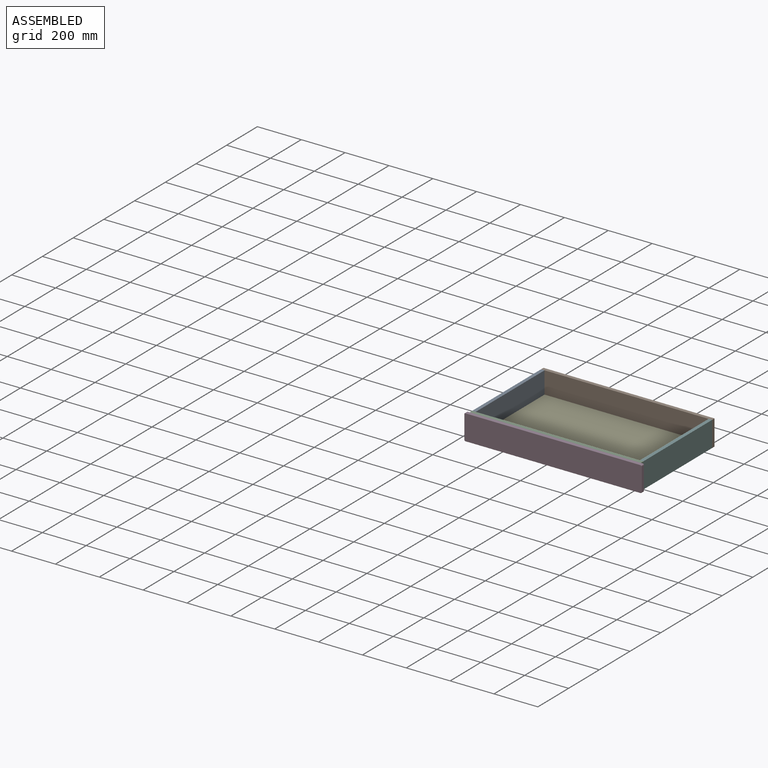
[diagram: assembled view]
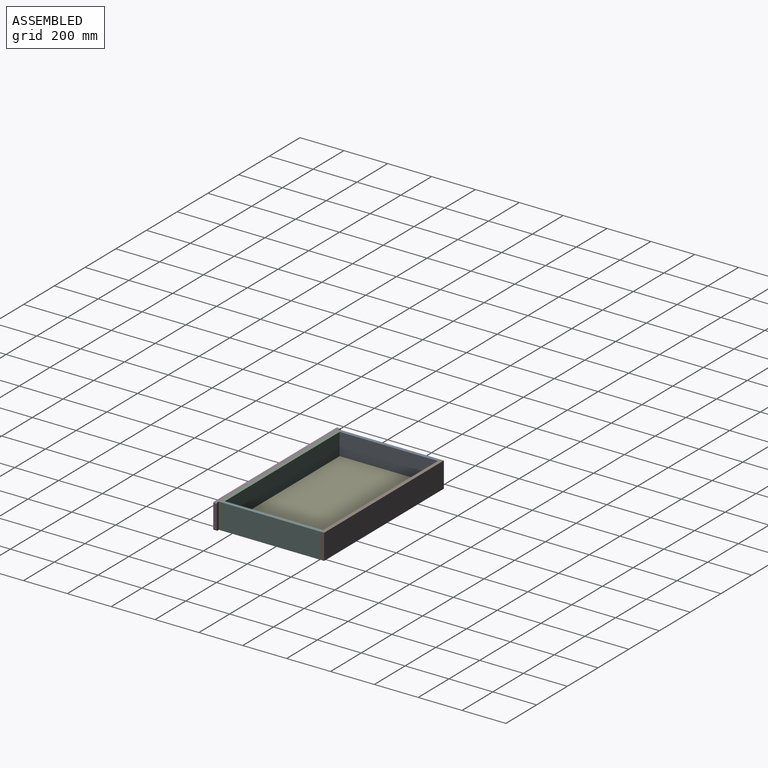
[diagram: assembled view, second angle]
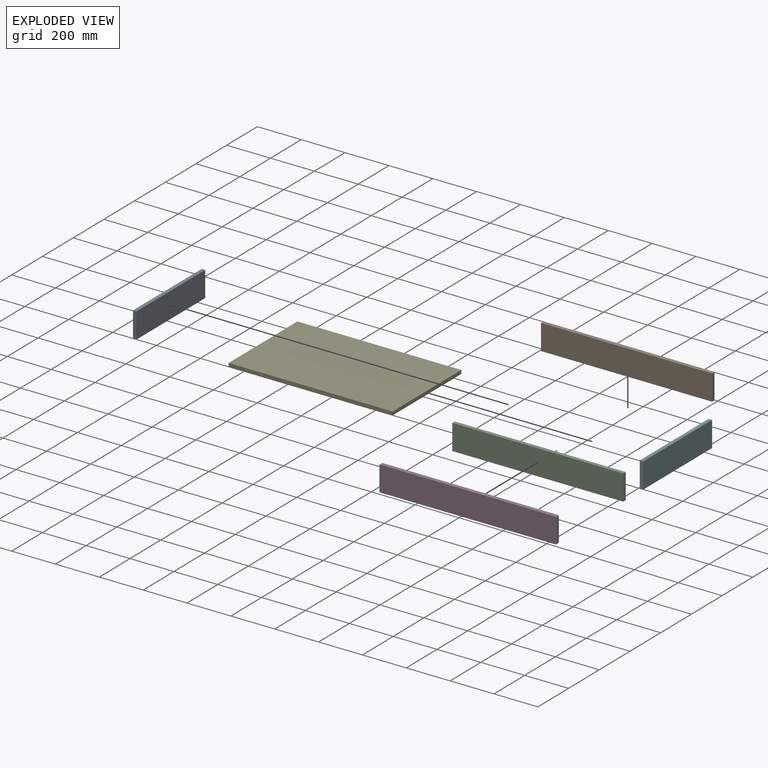
[diagram: exploded view]
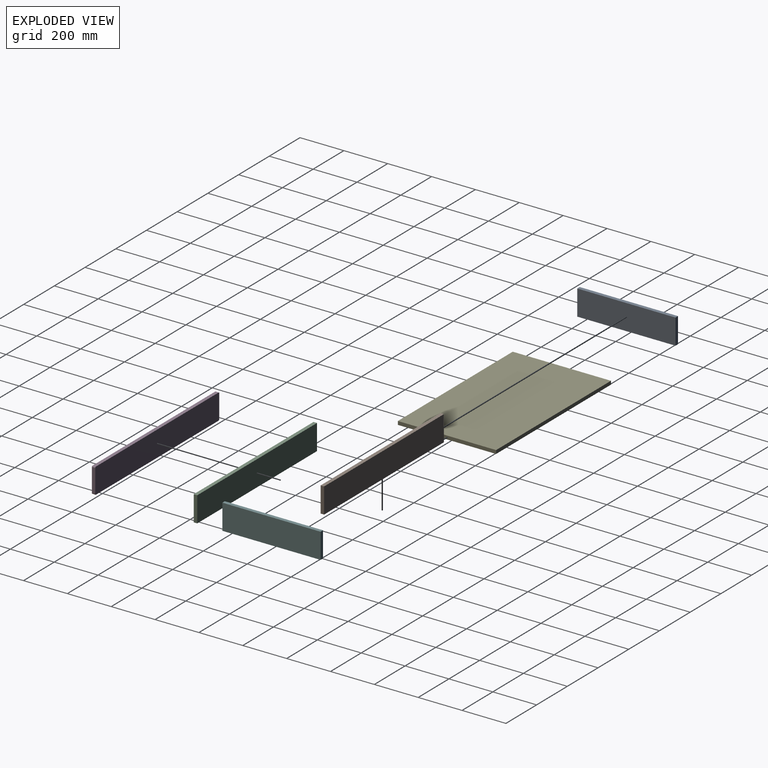
[diagram: exploded view, second angle]
ASSEMBLY  parts=6 mates=12
PART A: 6 faces, bbox 16x448x116 mm
  f0: plane 448x16mm, normal (0,0,1), area 7168mm2, adj f1,f3,f4,f5
  f1: plane 116x16mm, normal (0,-1,0), area 1856mm2, adj f0,f2,f4,f5
  f2: plane 448x16mm, normal (0,0,-1), area 7168mm2, adj f1,f3,f4,f5
  f3: plane 116x16mm, normal (0,1,0), area 1856mm2, adj f0,f2,f4,f5
  f4: plane 448x116mm, normal (1,0,0), area 51968mm2, adj f0,f1,f2,f3
  f5: plane 448x116mm, normal (-1,0,0), area 51968mm2, adj f0,f1,f2,f3
PART B: 6 faces, bbox 780x16x116 mm
  f0: plane 780x16mm, normal (0,0,1), area 12480mm2, adj f1,f3,f4,f5
  f1: plane 116x16mm, normal (-1,0,0), area 1856mm2, adj f0,f2,f4,f5
  f2: plane 780x16mm, normal (0,0,-1), area 12480mm2, adj f1,f3,f4,f5
  f3: plane 116x16mm, normal (1,0,0), area 1856mm2, adj f0,f2,f4,f5
  f4: plane 780x116mm, normal (0,-1,0), area 90480mm2, adj f0,f1,f2,f3
  f5: plane 780x116mm, normal (0,1,0), area 90480mm2, adj f0,f1,f2,f3
PART C: same geometry as B
PART D: 18 faces, bbox 808.8x16x116.8 mm
  f0: plane 798x15mm, normal (0,0,1), area 11970mm2, adj f5,f6,f9,f10
  f1: plane 106x15mm, normal (-1,0,0), area 1590mm2, adj f5,f6,f7,f13
  f2: plane 798x15mm, normal (0,0,-1), area 11970mm2, adj f5,f7,f8,f17
  f3: plane 106x15mm, normal (1,0,0), area 1590mm2, adj f5,f8,f9,f14
  f4: plane 806x114mm, normal (0,-1,0), area 91870.3mm2, adj f10,f11,f12,f13,f14,f15,f16,f17
  f5: plane 808x116mm, normal (0,1,0), area 93706.5mm2, adj f0,f1,f2,f3,f6,f7,f8,f9
  f6: cylinder r=5mm len=15mm, axis (0,-1,0), area 117.8mm2, adj f0,f1,f5,f11
  f7: cylinder r=5mm len=15mm, axis (0,1,0), area 117.8mm2, adj f1,f2,f5,f15
  f8: cylinder r=5mm len=15mm, axis (0,-1,0), area 117.8mm2, adj f2,f3,f5,f16
  f9: cylinder r=5mm len=15mm, axis (0,1,0), area 117.8mm2, adj f0,f3,f5,f12
  f10: cylinder r=1mm len=798mm, axis (1,0,0), area 1253.5mm2, adj f0,f4,f11,f12
  f11: torus R=4mm, axis (0,-1,0), area 11.4mm2, adj f4,f6,f10,f13
  f12: torus R=4mm, axis (0,-1,0), area 11.4mm2, adj f4,f9,f10,f14
  f13: cylinder r=1mm len=106mm, axis (0,0,1), area 166.5mm2, adj f1,f4,f11,f15
  f14: cylinder r=1mm len=106mm, axis (0,0,-1), area 166.5mm2, adj f3,f4,f12,f16
  f15: torus R=4mm, axis (0,-1,0), area 11.4mm2, adj f4,f7,f13,f17
  f16: torus R=4mm, axis (0,-1,0), area 11.4mm2, adj f4,f8,f14,f17
  f17: cylinder r=1mm len=798mm, axis (-1,0,0), area 1253.5mm2, adj f2,f4,f15,f16
PART E: 6 faces, bbox 748x448x16 mm
  f0: plane 748x16mm, normal (0,1,0), area 11968mm2, adj f1,f3,f4,f5
  f1: plane 448x16mm, normal (-1,0,0), area 7168mm2, adj f0,f2,f4,f5
  f2: plane 748x16mm, normal (0,-1,0), area 11968mm2, adj f1,f3,f4,f5
  f3: plane 448x16mm, normal (1,0,0), area 7168mm2, adj f0,f2,f4,f5
  f4: plane 748x448mm, normal (0,0,1), area 335104mm2, adj f0,f1,f2,f3
  f5: plane 748x448mm, normal (0,0,-1), area 335104mm2, adj f0,f1,f2,f3
PART F: same geometry as A
PLACE A t=(-541.27,-207.19,-143.26)mm
PLACE B t=(-391.06,37.97,-169.86)mm
PLACE C t=(-391.06,-426.03,-169.86)mm
PLACE D t=(-341.98,-442.03,-173.36)mm
PLACE E t=(-209.53,-199.64,-230.04)mm fixed
PLACE F t=(222.73,-207.19,-143.26)mm
MATE planar A.f4 <-> E.f1  axis (1,0,0) through (-525.27,-202.03,-172.04)mm
MATE planar B.f2 <-> E.f5  axis (0,0,-1) through (-151.27,29.97,-230.04)mm
MATE planar F.f5 <-> E.f3  axis (-1,0,0) through (222.73,-202.03,-114.04)mm
MATE planar C.f5 <-> E.f2  axis (0,1,0) through (-151.27,-426.03,-172.04)mm
MATE planar B.f4 <-> E.f0  axis (0,-1,0) through (-151.27,21.97,-172.04)mm
MATE planar C.f1 <-> A.f5  axis (-1,0,0) through (-541.27,-442.03,-172.04)mm
MATE fastened D.f5 <-> C.f4  axis (0,1,0) through (-151.27,-442.03,-172.04)mm
MATE planar A.f3 <-> B.f4  axis (0,1,0) through (-533.27,21.97,-172.04)mm
MATE planar E.f5 <-> C.f2  axis (0,0,-1) through (-151.27,-202.03,-230.04)mm
MATE planar A.f2 <-> E.f5  axis (0,0,-1) through (-533.27,-202.03,-230.04)mm
MATE planar F.f2 <-> E.f5  axis (0,0,-1) through (230.73,-202.03,-230.04)mm
MATE planar F.f3 <-> B.f4  axis (0,1,0) through (230.73,21.97,-172.04)mm
